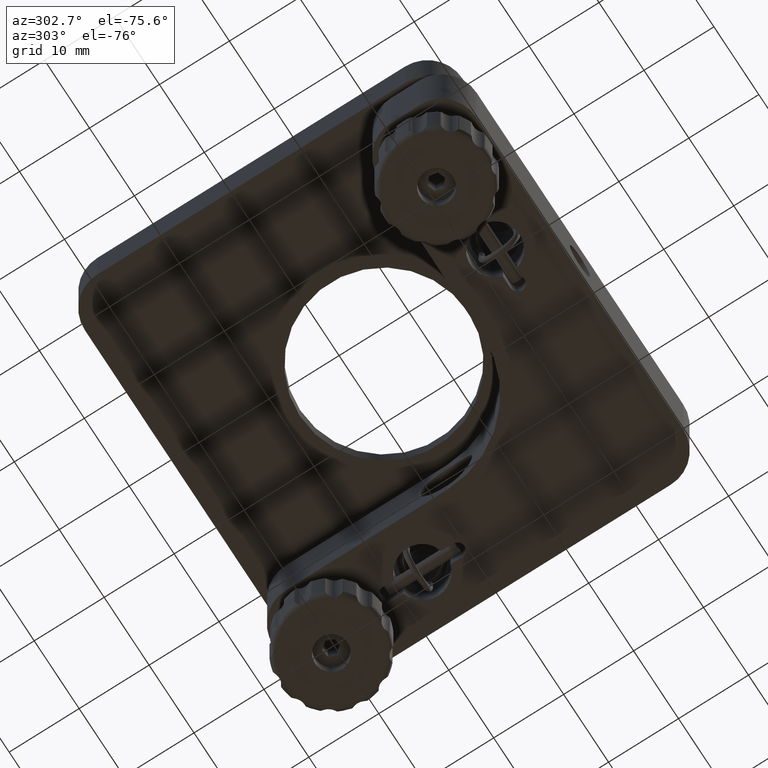
[diagram: clean part render]
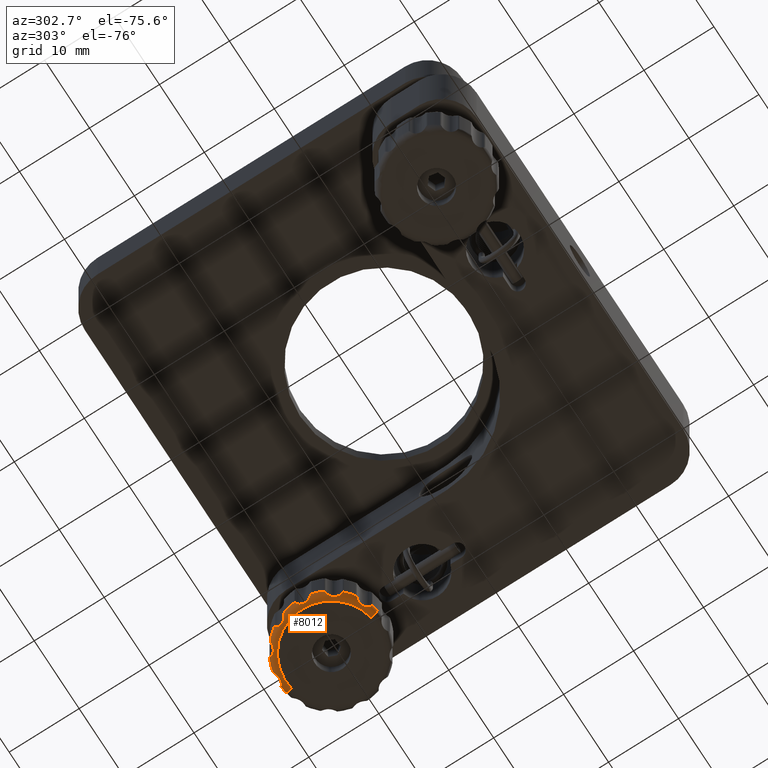
[diagram: same view with one face highlighted and labeled with its STEP entity id]
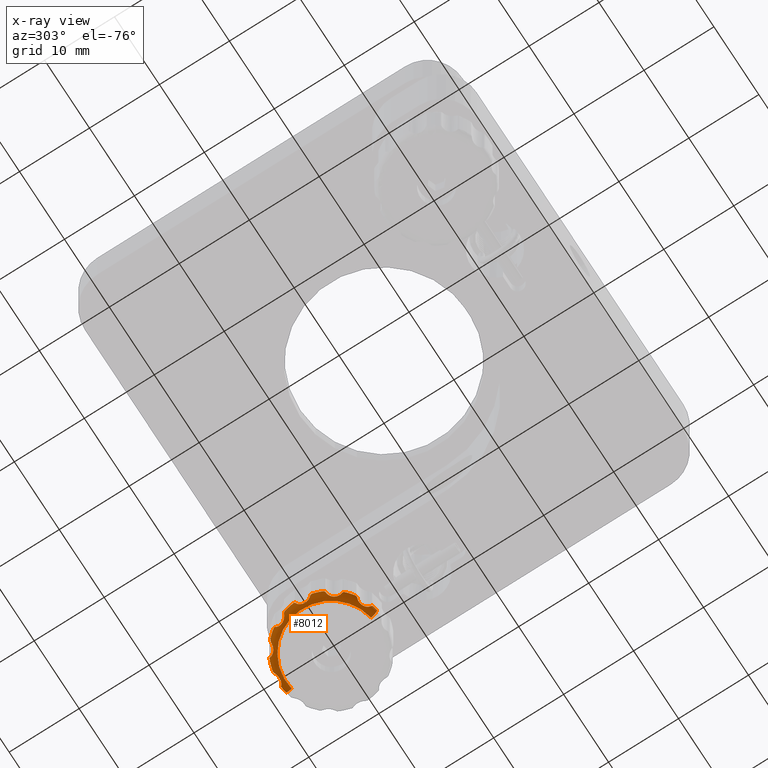
[diagram: x-ray of the same camera — body ghosted, the highlighted face saturated]
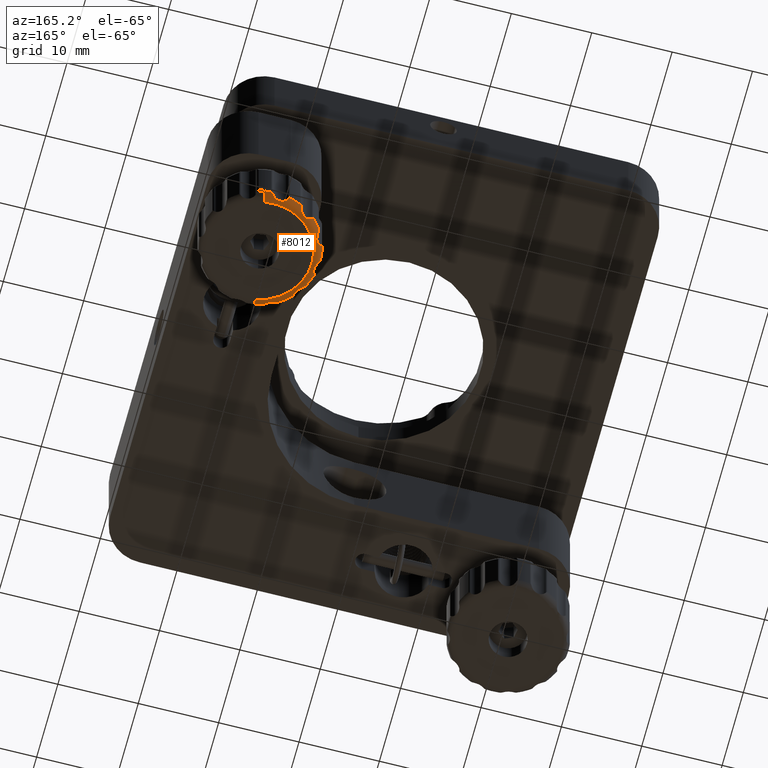
[diagram: same view with one face highlighted and labeled with its STEP entity id]
A machine part, auxiliary view. The second image highlights one B-rep face of the part: STEP entity #8012.
The next image is the same camera in x-ray: the body ghosted, the highlighted face saturated — about 0% of this face is hidden behind the body in this view.
A second angle (auxiliary view) of the same face is appended — the face is thin or edge-on in the first view.
In plain terms, the highlighted toroidal blend (fillet) surface has major radius 6.5 mm and minor (blend) radius 1 mm.
Its self-contained STEP definition (entity closure, byte-faithful):
#4 = CARTESIAN_POINT ( 'NONE',  ( 21.00000000000004300, 20.99999999999999300, -25.82470822868307500 ) ) ;
#27 = CARTESIAN_POINT ( 'NONE',  ( 14.45543812169540800, 23.62352019091589000, -26.66714343490419000 ) ) ;
#67 = TOROIDAL_SURFACE ( 'NONE', #15148, 6.500000000000000000, 1.000000000000000000 ) ;
#119 = CARTESIAN_POINT ( 'NONE',  ( 17.72897829913046100, 27.74910490601832800, -25.82470822868309000 ) ) ;
#168 = CARTESIAN_POINT ( 'NONE',  ( 14.18503406641042600, 23.38256357699137700, -26.52359823197068100 ) ) ;
#186 = CARTESIAN_POINT ( 'NONE',  ( 15.61527988249552100, 15.77938803815658100, -25.82470822868305800 ) ) ;
#198 = DIRECTION ( 'NONE',  ( -3.755894014714996800E-015, 3.179603490885369800E-016, 1.000000000000000000 ) ) ;
#216 = CARTESIAN_POINT ( 'NONE',  ( 21.54176456372600900, 28.48040715185282000, -25.82470822868307500 ) ) ;
#228 = VERTEX_POINT ( 'NONE', #1639 ) ;
#234 = CARTESIAN_POINT ( 'NONE',  ( 14.44004567988468500, 17.57090886900307300, -26.25615304385909400 ) ) ;
#311 = CARTESIAN_POINT ( 'NONE',  ( 15.15439969053274000, 17.14455961439440300, -26.69082189119487200 ) ) ;
#360 = AXIS2_PLACEMENT_3D ( 'NONE', #14291, #6502, #15640 ) ;
#382 = CARTESIAN_POINT ( 'NONE',  ( 17.55655947284740000, 27.50865493744284900, -26.33731476555139700 ) ) ;
#445 = DIRECTION ( 'NONE',  ( 3.755894014714996800E-015, -3.179603490885369800E-016, -1.000000000000000000 ) ) ;
#502 = VERTEX_POINT ( 'NONE', #9794 ) ;
#509 = B_SPLINE_CURVE_WITH_KNOTS ( 'NONE', 3,
 ( #14050, #987, #3636, #15491 ),
 .UNSPECIFIED., .F., .F.,
 ( 4, 4 ),
 ( 6.418687837528984100E-016, 0.0004984791478706522700 ),
 .UNSPECIFIED. ) ;
#574 = CARTESIAN_POINT ( 'NONE',  ( 21.00000000000004300, 20.99999999999999300, -25.82470822868307500 ) ) ;
#668 = EDGE_CURVE ( 'NONE', #6595, #16224, #509, .T. ) ;
#679 = CARTESIAN_POINT ( 'NONE',  ( 17.57090886900301300, 27.55995432011524600, -26.25615304385905100 ) ) ;
#680 = CARTESIAN_POINT ( 'NONE',  ( 18.79837543197200500, 13.86229062644217400, -26.11577484361036000 ) ) ;
#726 = B_SPLINE_CURVE_WITH_KNOTS ( 'NONE', 3,
 ( #10446, #910, #8940, #4935 ),
 .UNSPECIFIED., .F., .F.,
 ( 4, 4 ),
 ( -6.324575239408970400E-006, 0.0004951179910539902800 ),
 .UNSPECIFIED. ) ;
#755 = ORIENTED_EDGE ( 'NONE', *, *, #1996, .F. ) ;
#758 = ORIENTED_EDGE ( 'NONE', *, *, #9917, .F. ) ;
#906 = CARTESIAN_POINT ( 'NONE',  ( 16.79061454901663500, 14.79265965770770000, -25.82470822868309000 ) ) ;
#910 = CARTESIAN_POINT ( 'NONE',  ( 13.70650194539036600, 19.25027486630400000, -25.97060735151874400 ) ) ;
#974 = CARTESIAN_POINT ( 'NONE',  ( 13.68766992815574900, 21.22097726679198700, -26.40847051692303900 ) ) ;
#987 = CARTESIAN_POINT ( 'NONE',  ( 14.35131096886372000, 17.59572962619095200, -26.11576418252679600 ) ) ;
#1116 = VERTEX_POINT ( 'NONE', #15060 ) ;
#1140 = CARTESIAN_POINT ( 'NONE',  ( 20.77502829707428900, 28.04660499960478100, -26.66759793289198700 ) ) ;
#1169 = EDGE_CURVE ( 'NONE', #15492, #5103, #8614, .T. ) ;
#1224 = CARTESIAN_POINT ( 'NONE',  ( 18.75856809091612800, 13.94538096963364500, -26.25615304386106500 ) ) ;
#1226 = AXIS2_PLACEMENT_3D ( 'NONE', #4, #198, #1609 ) ;
#1251 = CARTESIAN_POINT ( 'NONE',  ( 17.57090886900301300, 27.55995432011524600, -26.25615304385905100 ) ) ;
#1449 = EDGE_CURVE ( 'NONE', #1116, #13054, #13480, .T. ) ;
#1564 = CIRCLE ( 'NONE', #13519, 1.000000000000000400 ) ;
#1609 = DIRECTION ( 'NONE',  ( -0.1738966701729160200, -0.9847639047521857800, -4.625929269271485900E-016 ) ) ;
#1639 = CARTESIAN_POINT ( 'NONE',  ( 16.01123666022347100, 26.46844648930281400, -26.25615304386107600 ) ) ;
#1644 = CARTESIAN_POINT ( 'NONE',  ( 15.53801221491983000, 16.13276742192527600, -26.40806248021128200 ) ) ;
#1939 = VERTEX_POINT ( 'NONE', #7716 ) ;
#1972 = CARTESIAN_POINT ( 'NONE',  ( 13.76980475113959900, 19.41382745893652400, -26.25615304386101600 ) ) ;
#1996 = EDGE_CURVE ( 'NONE', #10193, #13054, #6553, .T. ) ;
#2122 = CARTESIAN_POINT ( 'NONE',  ( 14.72747085936239100, 25.05579841592233200, -26.11576418252679200 ) ) ;
#2216 = B_SPLINE_CURVE_WITH_KNOTS ( 'NONE', 3,
 ( #186, #12233, #10891, #16322 ),
 .UNSPECIFIED., .F., .F.,
 ( 4, 4 ),
 ( -6.324575239414207600E-006, 0.0004951179910539937500 ),
 .UNSPECIFIED. ) ;
#2229 = ORIENTED_EDGE ( 'NONE', *, *, #2338, .F. ) ;
#2303 = CARTESIAN_POINT ( 'NONE',  ( 21.31029712872238900, 28.39563265438377800, -26.25615304385904000 ) ) ;
#2313 = EDGE_CURVE ( 'NONE', #8046, #3101, #15546, .T. ) ;
#2330 = CARTESIAN_POINT ( 'NONE',  ( 19.69577497370301000, 13.61427071435862900, -25.82470822868307900 ) ) ;
#2338 = EDGE_CURVE ( 'NONE', #1116, #2868, #16804, .T. ) ;
#2352 = CARTESIAN_POINT ( 'NONE',  ( 21.22097726679193400, 28.31233007184429300, -26.40847051692300000 ) ) ;
#2399 = CARTESIAN_POINT ( 'NONE',  ( 21.00000000000004300, 20.99999999999999300, -25.82470822868307500 ) ) ;
#2473 = CARTESIAN_POINT ( 'NONE',  ( 19.99975419352233500, 27.97951693870893000, -26.66714343490419400 ) ) ;
#2493 = CARTESIAN_POINT ( 'NONE',  ( 16.98980807712964500, 14.73915745705463800, -26.18749694676456500 ) ) ;
#2576 = CIRCLE ( 'NONE', #1226, 7.499999999999999100 ) ;
#2585 = CARTESIAN_POINT ( 'NONE',  ( 16.90682096601646500, 14.74552409997155600, -26.04780393901572600 ) ) ;
#2716 = CARTESIAN_POINT ( 'NONE',  ( 19.21158995607633500, 28.28377140837716300, -25.89925108447961600 ) ) ;
#2733 = CARTESIAN_POINT ( 'NONE',  ( 14.57406761881174400, 23.78336984530308500, -26.69064492828464500 ) ) ;
#2752 = EDGE_CURVE ( 'NONE', #16379, #15358, #16163, .T. ) ;
#2790 = CARTESIAN_POINT ( 'NONE',  ( 13.64161921613119300, 21.27222049578642100, -26.33731476555140800 ) ) ;
#2862 = CARTESIAN_POINT ( 'NONE',  ( 14.76356555834352200, 24.91494025671615700, -26.33731476555140800 ) ) ;
#2868 = VERTEX_POINT ( 'NONE', #14596 ) ;
#2878 = CARTESIAN_POINT ( 'NONE',  ( 13.60436734561619200, 21.31029712872240000, -26.25615304385909700 ) ) ;
#2897 = CARTESIAN_POINT ( 'NONE',  ( 17.14455961439435300, 26.84560030946720500, -26.69082189119487600 ) ) ;
#2934 = EDGE_CURVE ( 'NONE', #13276, #4491, #7436, .T. ) ;
#2935 = CARTESIAN_POINT ( 'NONE',  ( 15.53567138919087900, 16.06473354480736800, -26.33790387512061000 ) ) ;
#2993 = CARTESIAN_POINT ( 'NONE',  ( 17.19787079417207900, 14.78694225727812400, -26.45261387397216200 ) ) ;
#2999 = CARTESIAN_POINT ( 'NONE',  ( 15.51780717490085800, 16.37648135105512300, -26.56793115511110800 ) ) ;
#3023 = CARTESIAN_POINT ( 'NONE',  ( 13.72638960505024700, 19.17117747649489300, -25.82470822868303300 ) ) ;
#3054 = DIRECTION ( 'NONE',  ( -3.755894014714996800E-015, 3.179603490885369800E-016, 1.000000000000000000 ) ) ;
#3101 = VERTEX_POINT ( 'NONE', #216 ) ;
#3146 = CARTESIAN_POINT ( 'NONE',  ( 19.17117747649480100, 28.27361039494967400, -25.82470822868308200 ) ) ;
#3417 = CIRCLE ( 'NONE', #360, 7.500000000000000000 ) ;
#3508 = CARTESIAN_POINT ( 'NONE',  ( 19.33685340561725900, 28.27096914716321100, -26.11830494729049000 ) ) ;
#3620 = ORIENTED_EDGE ( 'NONE', *, *, #1169, .F. ) ;
#3636 = CARTESIAN_POINT ( 'NONE',  ( 14.28625583367290600, 17.65601842189474600, -25.96974511887759400 ) ) ;
#3822 = CARTESIAN_POINT ( 'NONE',  ( 14.44004567988468500, 17.57090886900307300, -26.25615304385909400 ) ) ;
#4100 = CARTESIAN_POINT ( 'NONE',  ( 19.25434324352978900, 28.28553938311199500, -25.97415453565511700 ) ) ;
#4131 = CARTESIAN_POINT ( 'NONE',  ( 16.90682096601646500, 14.74552409997155600, -26.04780393901572600 ) ) ;
#4205 = CARTESIAN_POINT ( 'NONE',  ( 16.37648135105505900, 26.48219282509908000, -26.56793115511111800 ) ) ;
#4224 = CARTESIAN_POINT ( 'NONE',  ( 14.75034280860703500, 24.96654152338677300, -26.25615304385909400 ) ) ;
#4237 = CARTESIAN_POINT ( 'NONE',  ( 13.53993121026848100, 21.37615989049871600, -26.11576418252679200 ) ) ;
#4264 = CARTESIAN_POINT ( 'NONE',  ( 17.57090886900301300, 27.55995432011524600, -26.25615304385905100 ) ) ;
#4275 = CARTESIAN_POINT ( 'NONE',  ( 13.90678458709018600, 19.65587761701136300, -26.52359823197067000 ) ) ;
#4373 = CARTESIAN_POINT ( 'NONE',  ( 17.66664602966605800, 14.77443635177605200, -26.65198746077559700 ) ) ;
#4378 = CARTESIAN_POINT ( 'NONE',  ( 15.45568392817309100, 16.64400325220707800, -26.66714343490421900 ) ) ;
#4388 = CARTESIAN_POINT ( 'NONE',  ( 16.82666423754155700, 26.62343518475417900, -26.69064492828466200 ) ) ;
#4442 = CIRCLE ( 'NONE', #8616, 1.000000000000000400 ) ;
#4491 = VERTEX_POINT ( 'NONE', #4131 ) ;
#4607 = EDGE_CURVE ( 'NONE', #1939, #2868, #11261, .T. ) ;
#4699 = CIRCLE ( 'NONE', #12659, 7.499999999999999100 ) ;
#4739 = CARTESIAN_POINT ( 'NONE',  ( 17.72897829913046100, 27.74910490601832800, -25.82470822868309000 ) ) ;
#4795 = EDGE_CURVE ( 'NONE', #502, #16204, #12835, .T. ) ;
#4882 = CARTESIAN_POINT ( 'NONE',  ( 21.00000000000002800, 21.00000000000000000, -26.82470822868307500 ) ) ;
#4910 = CARTESIAN_POINT ( 'NONE',  ( 19.29649937849918500, 28.27809515057519700, -26.04780393901547700 ) ) ;
#4935 = CARTESIAN_POINT ( 'NONE',  ( 13.76980475113959900, 19.41382745893652400, -26.25615304386101600 ) ) ;
#4937 = CARTESIAN_POINT ( 'NONE',  ( 18.86855738811788900, 13.80878283540719800, -25.97060735151981700 ) ) ;
#5008 = VERTEX_POINT ( 'NONE', #10512 ) ;
#5061 = ORIENTED_EDGE ( 'NONE', *, *, #11696, .T. ) ;
#5088 = AXIS2_PLACEMENT_3D ( 'NONE', #4882, #16723, #10057 ) ;
#5103 = VERTEX_POINT ( 'NONE', #12035 ) ;
#5146 = CARTESIAN_POINT ( 'NONE',  ( 13.94538096963356500, 23.24143190908383600, -26.25615304386101600 ) ) ;
#5151 = CARTESIAN_POINT ( 'NONE',  ( 21.54176456372600900, 28.48040715185282000, -25.82470822868307500 ) ) ;
#5234 = ORIENTED_EDGE ( 'NONE', *, *, #10554, .T. ) ;
#5340 = ORIENTED_EDGE ( 'NONE', *, *, #10912, .T. ) ;
#5384 = VERTEX_POINT ( 'NONE', #3146 ) ;
#5450 = CARTESIAN_POINT ( 'NONE',  ( 19.86967164387594700, 14.59903461911081200, -25.82470822868307900 ) ) ;
#5476 = EDGE_CURVE ( 'NONE', #14556, #16958, #9437, .T. ) ;
#5480 = CARTESIAN_POINT ( 'NONE',  ( 14.77782503032192500, 24.84753696262274800, -26.40847051692303500 ) ) ;
#5533 = CARTESIAN_POINT ( 'NONE',  ( 14.79618141715013400, 24.69160867447395400, -26.52395729810419700 ) ) ;
#5591 = ORIENTED_EDGE ( 'NONE', *, *, #2752, .F. ) ;
#5613 = EDGE_CURVE ( 'NONE', #10385, #15492, #4442, .T. ) ;
#5626 = CARTESIAN_POINT ( 'NONE',  ( 14.25089509398159600, 17.72897829913054200, -25.82470822868309700 ) ) ;
#5649 = CARTESIAN_POINT ( 'NONE',  ( 13.76980475113959900, 19.41382745893652400, -26.25615304386101600 ) ) ;
#5697 = CARTESIAN_POINT ( 'NONE',  ( 14.04329439223838300, 20.19750280356602100, -26.69064492828464100 ) ) ;
#5706 = B_SPLINE_CURVE_WITH_KNOTS ( 'NONE', 3,
 ( #10178, #2122, #7476, #16592 ),
 .UNSPECIFIED., .F., .F.,
 ( 4, 4 ),
 ( 6.426161305655816000E-016, 0.0004984791478706483700 ),
 .UNSPECIFIED. ) ;
#5727 = EDGE_CURVE ( 'NONE', #6595, #5008, #6358, .T. ) ;
#5759 = CARTESIAN_POINT ( 'NONE',  ( 13.94052242054689800, 19.73701180769219500, -26.56793115511108300 ) ) ;
#5929 = EDGE_CURVE ( 'NONE', #7228, #3101, #16170, .T. ) ;
#5966 = CARTESIAN_POINT ( 'NONE',  ( 21.31029712872238900, 28.39563265438377800, -26.25615304385904000 ) ) ;
#5971 = CARTESIAN_POINT ( 'NONE',  ( 18.94700156689376800, 13.78645735899043600, -25.82470822868304700 ) ) ;
#6059 = CARTESIAN_POINT ( 'NONE',  ( 17.66664602966605800, 14.77443635177605200, -26.65198746077559700 ) ) ;
#6073 = CARTESIAN_POINT ( 'NONE',  ( 18.75856809091612800, 13.94538096963364500, -26.25615304386106500 ) ) ;
#6075 = DIRECTION ( 'NONE',  ( -0.1738966701729377500, -0.9847639047521820100, -3.400215877566102500E-016 ) ) ;
#6152 = CARTESIAN_POINT ( 'NONE',  ( 18.15367253789394300, 14.60402524483572900, -26.69101383591920800 ) ) ;
#6165 = DIRECTION ( 'NONE',  ( -0.1738966701729229300, -0.9847639047521845600, -4.625929269271484900E-016 ) ) ;
#6237 = CARTESIAN_POINT ( 'NONE',  ( 21.00000000000004300, 20.99999999999999300, -25.82470822868307500 ) ) ;
#6253 = B_SPLINE_CURVE_WITH_KNOTS ( 'NONE', 3,
 ( #9599, #2716, #4100, #16559 ),
 .UNSPECIFIED., .F., .F.,
 ( 4, 4 ),
 ( -6.324575239420768700E-006, 0.0002498727217913078200 ),
 .UNSPECIFIED. ) ;
#6261 = VERTEX_POINT ( 'NONE', #5971 ) ;
#6342 = CARTESIAN_POINT ( 'NONE',  ( 19.41382745893646000, 28.23019524886034800, -26.25615304386103000 ) ) ;
#6358 = B_SPLINE_CURVE_WITH_KNOTS ( 'NONE', 3,
 ( #234, #14453, #15007, #7031, #12341, #13642, #311, #9673, #4378, #2999, #7098, #1644, #2935, #13718 ),
 .UNSPECIFIED., .F., .F.,
 ( 4, 2, 2, 2, 2, 2, 4 ),
 ( 0.0004549188434784840600, 0.0007454011220209284400, 0.001035883400563372900, 0.001616847957648257600, 0.002197812514733142300, 0.002488294793275585200, 0.002778777071818028200 ),
 .UNSPECIFIED. ) ;
#6389 = B_SPLINE_CURVE_WITH_KNOTS ( 'NONE', 3,
 ( #10951, #11023, #2993, #12292, #7097, #4373 ),
 .UNSPECIFIED., .F., .F.,
 ( 4, 2, 4 ),
 ( 0.0004549188434784742500, 0.0008384482362595274500, 0.001221977629040580700 ),
 .UNSPECIFIED. ) ;
#6393 = CARTESIAN_POINT ( 'NONE',  ( 21.46089908673678800, 28.48626379160146300, -25.96974511887734800 ) ) ;
#6403 = DIRECTION ( 'NONE',  ( -3.755894014714996800E-015, 3.179603490885369800E-016, 1.000000000000000000 ) ) ;
#6405 = ORIENTED_EDGE ( 'NONE', *, *, #5727, .F. ) ;
#6408 = CARTESIAN_POINT ( 'NONE',  ( 21.27222049578639200, 28.35838078386885300, -26.33731476555136900 ) ) ;
#6421 = ORIENTED_EDGE ( 'NONE', *, *, #15341, .T. ) ;
#6502 = DIRECTION ( 'NONE',  ( -3.755894014714996800E-015, 3.179603490885369800E-016, 1.000000000000000000 ) ) ;
#6553 = B_SPLINE_CURVE_WITH_KNOTS ( 'NONE', 3,
 ( #4224, #2862, #5480, #5533, #14863, #16018, #8105, #2733, #27, #6667, #168, #8031, #12145, #17367 ),
 .UNSPECIFIED., .F., .F.,
 ( 4, 2, 2, 2, 2, 2, 4 ),
 ( 0.0004549188434784899200, 0.0007454011220209280000, 0.001035883400563366100, 0.001616847957648242000, 0.002197812514733118100, 0.002488294793275557500, 0.002778777071817997400 ),
 .UNSPECIFIED. ) ;
#6586 = ORIENTED_EDGE ( 'NONE', *, *, #15319, .T. ) ;
#6595 = VERTEX_POINT ( 'NONE', #3822 ) ;
#6615 = ORIENTED_EDGE ( 'NONE', *, *, #5613, .F. ) ;
#6640 = ORIENTED_EDGE ( 'NONE', *, *, #16265, .F. ) ;
#6667 = CARTESIAN_POINT ( 'NONE',  ( 14.25481898259299000, 23.43595893050810000, -26.56793115511107600 ) ) ;
#6992 = CARTESIAN_POINT ( 'NONE',  ( 13.83616353392288700, 19.51584683380014300, -26.40806248021123500 ) ) ;
#7031 = CARTESIAN_POINT ( 'NONE',  ( 14.70106381564956200, 17.47313984401913000, -26.52395729810420400 ) ) ;
#7035 = VERTEX_POINT ( 'NONE', #1972 ) ;
#7049 = CARTESIAN_POINT ( 'NONE',  ( 17.53520689077853900, 27.44315223646998400, -26.40847051692303500 ) ) ;
#7087 = CARTESIAN_POINT ( 'NONE',  ( 13.51959284814714300, 21.54176456372606600, -25.82470822868310000 ) ) ;
#7097 = CARTESIAN_POINT ( 'NONE',  ( 17.54323145099678200, 14.79622978284904300, -26.62547455919512300 ) ) ;
#7098 = CARTESIAN_POINT ( 'NONE',  ( 15.52915644939911400, 16.28934816408168400, -26.52359823197071600 ) ) ;
#7104 = ORIENTED_EDGE ( 'NONE', *, *, #2313, .F. ) ;
#7113 = CARTESIAN_POINT ( 'NONE',  ( 17.47313984401907700, 27.29893618435039900, -26.52395729810421100 ) ) ;
#7228 = VERTEX_POINT ( 'NONE', #2303 ) ;
#7436 = B_SPLINE_CURVE_WITH_KNOTS ( 'NONE', 3,
 ( #15792, #2493, #11809, #17133 ),
 .UNSPECIFIED., .F., .F.,
 ( 4, 4 ),
 ( 6.473750018040663100E-016, 0.0002437774083432675700 ),
 .UNSPECIFIED. ) ;
#7461 = ORIENTED_EDGE ( 'NONE', *, *, #1449, .T. ) ;
#7476 = CARTESIAN_POINT ( 'NONE',  ( 14.74715492040917300, 25.14228221349478400, -25.96974511887670500 ) ) ;
#7487 = ORIENTED_EDGE ( 'NONE', *, *, #5476, .T. ) ;
#7639 = VERTEX_POINT ( 'NONE', #119 ) ;
#7716 = CARTESIAN_POINT ( 'NONE',  ( 13.60436734561619200, 21.31029712872240000, -26.25615304385909700 ) ) ;
#7733 = ORIENTED_EDGE ( 'NONE', *, *, #14241, .T. ) ;
#7739 = ORIENTED_EDGE ( 'NONE', *, *, #4607, .T. ) ;
#7747 = CARTESIAN_POINT ( 'NONE',  ( 19.41382745893646000, 28.23019524886034800, -26.25615304386103000 ) ) ;
#7787 = CARTESIAN_POINT ( 'NONE',  ( 15.77938803815646200, 26.38472011750437600, -25.82470822868309300 ) ) ;
#8012 = ADVANCED_FACE ( 'NONE', ( #15976 ), #67, .T. ) ;
#8031 = CARTESIAN_POINT ( 'NONE',  ( 14.05385904871992200, 23.29660388800228100, -26.40806248021124600 ) ) ;
#8046 = VERTEX_POINT ( 'NONE', #16714 ) ;
#8053 = B_SPLINE_CURVE_WITH_KNOTS ( 'NONE', 3,
 ( #2585, #9338, #8440, #15092 ),
 .UNSPECIFIED., .F., .F.,
 ( 4, 4 ),
 ( 0.0002437774083432675700, 0.0004984791478706475000 ),
 .UNSPECIFIED. ) ;
#8105 = CARTESIAN_POINT ( 'NONE',  ( 14.73829052855539100, 24.13471817556592600, -26.69082189119486200 ) ) ;
#8417 = B_SPLINE_CURVE_WITH_KNOTS ( 'NONE', 3,
 ( #4264, #382, #7049, #7113, #14967, #12251, #2897, #4388, #16462, #4205, #11042, #10909, #13599, #16401 ),
 .UNSPECIFIED., .F., .F.,
 ( 4, 2, 2, 2, 2, 2, 4 ),
 ( 0.0004549188434784563600, 0.0007454011220208922200, 0.001035883400563328000, 0.001616847957648213100, 0.002197812514733098100, 0.002488294793275544900, 0.002778777071817992200 ),
 .UNSPECIFIED. ) ;
#8440 = CARTESIAN_POINT ( 'NONE',  ( 16.82490146229888600, 14.76940866356676100, -25.89881593887707100 ) ) ;
#8462 = ORIENTED_EDGE ( 'NONE', *, *, #5929, .T. ) ;
#8614 = CIRCLE ( 'NONE', #5088, 6.500000000000000000 ) ;
#8616 = AXIS2_PLACEMENT_3D ( 'NONE', #5450, #13404, #14775 ) ;
#8661 = AXIS2_PLACEMENT_3D ( 'NONE', #15470, #16827, #6165 ) ;
#8679 = ORIENTED_EDGE ( 'NONE', *, *, #15370, .F. ) ;
#8930 = B_SPLINE_CURVE_WITH_KNOTS ( 'NONE', 3,
 ( #679, #16756, #10830, #4739 ),
 .UNSPECIFIED., .F., .F.,
 ( 4, 4 ),
 ( 6.624009281243663500E-016, 0.0004984791478706366600 ),
 .UNSPECIFIED. ) ;
#8940 = CARTESIAN_POINT ( 'NONE',  ( 13.71775007365457300, 19.33780811872930300, -26.11577484361031400 ) ) ;
#8986 = B_SPLINE_CURVE_WITH_KNOTS ( 'NONE', 3,
 ( #15385, #4937, #680, #6073 ),
 .UNSPECIFIED., .F., .F.,
 ( 4, 4 ),
 ( -6.324575239419300800E-006, 0.0004951179910540151100 ),
 .UNSPECIFIED. ) ;
#9041 = CARTESIAN_POINT ( 'NONE',  ( 19.51584683380007900, 28.16383646607710000, -26.40806248021126700 ) ) ;
#9115 = CARTESIAN_POINT ( 'NONE',  ( 16.01123666022347100, 26.46844648930281400, -26.25615304386107600 ) ) ;
#9338 = CARTESIAN_POINT ( 'NONE',  ( 16.86465856477687800, 14.75296943904662700, -25.97414358809102100 ) ) ;
#9437 = B_SPLINE_CURVE_WITH_KNOTS ( 'NONE', 3,
 ( #11445, #3508, #16933, #14032 ),
 .UNSPECIFIED., .F., .F.,
 ( 4, 4 ),
 ( 0.0002498727217913078200, 0.0004951179910539645800 ),
 .UNSPECIFIED. ) ;
#9545 = ORIENTED_EDGE ( 'NONE', *, *, #10605, .F. ) ;
#9567 = ORIENTED_EDGE ( 'NONE', *, *, #16578, .F. ) ;
#9599 = CARTESIAN_POINT ( 'NONE',  ( 19.17117747649480100, 28.27361039494967400, -25.82470822868308200 ) ) ;
#9673 = CARTESIAN_POINT ( 'NONE',  ( 15.37656481524577900, 16.82666423754161400, -26.69064492828465500 ) ) ;
#9695 = EDGE_CURVE ( 'NONE', #6261, #16204, #8986, .T. ) ;
#9702 = ORIENTED_EDGE ( 'NONE', *, *, #12772, .T. ) ;
#9794 = CARTESIAN_POINT ( 'NONE',  ( 17.66664602966605800, 14.77443635177605200, -26.65198746077559700 ) ) ;
#9869 = AXIS2_PLACEMENT_3D ( 'NONE', #14382, #6403, #15698 ) ;
#9906 = VERTEX_POINT ( 'NONE', #1251 ) ;
#9917 = EDGE_CURVE ( 'NONE', #1939, #7035, #17350, .T. ) ;
#9952 = ORIENTED_EDGE ( 'NONE', *, *, #16975, .F. ) ;
#10041 = CARTESIAN_POINT ( 'NONE',  ( 13.78645735899035300, 23.05299843310617500, -25.82470822868310000 ) ) ;
#10057 = DIRECTION ( 'NONE',  ( -0.1738966701729377500, -0.9847639047521819000, -5.337610695313252400E-016 ) ) ;
#10157 = CARTESIAN_POINT ( 'NONE',  ( 18.67979598317890200, 14.09708168788145800, -26.45485963434153800 ) ) ;
#10178 = CARTESIAN_POINT ( 'NONE',  ( 14.75034280860703500, 24.96654152338677300, -26.25615304385909400 ) ) ;
#10193 = VERTEX_POINT ( 'NONE', #14076 ) ;
#10209 = B_SPLINE_CURVE_WITH_KNOTS ( 'NONE', 3,
 ( #7787, #12949, #16939, #9115 ),
 .UNSPECIFIED., .F., .F.,
 ( 4, 4 ),
 ( -6.324575239426858100E-006, 0.0004951179910539993900 ),
 .UNSPECIFIED. ) ;
#10333 = CARTESIAN_POINT ( 'NONE',  ( 19.73701180769213400, 28.05947757945308800, -26.56793115511108600 ) ) ;
#10385 = VERTEX_POINT ( 'NONE', #2330 ) ;
#10446 = CARTESIAN_POINT ( 'NONE',  ( 13.72638960505024700, 19.17117747649489300, -25.82470822868303300 ) ) ;
#10491 = CARTESIAN_POINT ( 'NONE',  ( 20.19750280356596800, 27.95670560776162000, -26.69064492828463700 ) ) ;
#10512 = CARTESIAN_POINT ( 'NONE',  ( 15.53155351069706900, 16.01123666022356700, -26.25615304386104000 ) ) ;
#10554 = EDGE_CURVE ( 'NONE', #4491, #15358, #8053, .T. ) ;
#10605 = EDGE_CURVE ( 'NONE', #5384, #7639, #12384, .T. ) ;
#10830 = CARTESIAN_POINT ( 'NONE',  ( 17.65601842189190400, 27.71374416632567900, -25.96974511887586000 ) ) ;
#10867 = CARTESIAN_POINT ( 'NONE',  ( 13.80011938081682700, 19.45809818076256500, -26.33790387512056700 ) ) ;
#10891 = CARTESIAN_POINT ( 'NONE',  ( 15.52448250771284000, 15.91937464168265800, -26.11577484361033900 ) ) ;
#10909 = CARTESIAN_POINT ( 'NONE',  ( 16.13276742192521200, 26.46198778508010800, -26.40806248021129900 ) ) ;
#10912 = EDGE_CURVE ( 'NONE', #17309, #7035, #726, .T. ) ;
#10951 = CARTESIAN_POINT ( 'NONE',  ( 17.03345847661313100, 14.75034280860713300, -26.25615304385908600 ) ) ;
#10982 = VERTEX_POINT ( 'NONE', #17063 ) ;
#11023 = CARTESIAN_POINT ( 'NONE',  ( 17.10158863096264500, 14.76780106183610800, -26.36331244096214400 ) ) ;
#11042 = CARTESIAN_POINT ( 'NONE',  ( 16.28934816408163400, 26.47084355060081900, -26.52359823197073000 ) ) ;
#11110 = CARTESIAN_POINT ( 'NONE',  ( 21.00000000000004300, 20.99999999999999300, -25.82470822868307500 ) ) ;
#11193 = ORIENTED_EDGE ( 'NONE', *, *, #15511, .F. ) ;
#11261 = B_SPLINE_CURVE_WITH_KNOTS ( 'NONE', 3,
 ( #2878, #4237, #16266, #7087 ),
 .UNSPECIFIED., .F., .F.,
 ( 4, 4 ),
 ( 6.507964880783069100E-016, 0.0004984791478706677700 ),
 .UNSPECIFIED. ) ;
#11384 = CARTESIAN_POINT ( 'NONE',  ( 18.72750757174949100, 14.01021396598080100, -26.36568610142837700 ) ) ;
#11445 = CARTESIAN_POINT ( 'NONE',  ( 19.29649937849918500, 28.27809515057519700, -26.04780393901547700 ) ) ;
#11492 = CARTESIAN_POINT ( 'NONE',  ( 18.54582546216446900, 14.27865352078348600, -26.58602876302379400 ) ) ;
#11541 = CARTESIAN_POINT ( 'NONE',  ( 17.79188528832480600, 14.75232070562920900, -26.67889235462713800 ) ) ;
#11542 = EDGE_LOOP ( 'NONE', ( #7104, #9702, #3620, #6615, #11193, #12398, #13943, #6640, #14179, #5234, #5591, #15243, #6405, #13906, #14136, #5340, #758, #7739, #2229, #7461, #755, #5061, #8679, #6421, #9567, #6586, #9545, #7733, #7487, #9952, #8462 ) ) ;
#11677 = CARTESIAN_POINT ( 'NONE',  ( 21.31029712872238900, 28.39563265438377800, -26.25615304385904000 ) ) ;
#11680 = CARTESIAN_POINT ( 'NONE',  ( 13.78153116954506700, 21.09511760150062200, -26.52395729810420400 ) ) ;
#11696 = EDGE_CURVE ( 'NONE', #10193, #13742, #5706, .T. ) ;
#11809 = CARTESIAN_POINT ( 'NONE',  ( 16.94717499313461000, 14.73839809656233300, -26.11830494728997800 ) ) ;
#11902 = DIRECTION ( 'NONE',  ( -0.1738966701729376700, -0.9847639047521821200, 0.0000000000000000000 ) ) ;
#12035 = CARTESIAN_POINT ( 'NONE',  ( 22.13032835612414200, 27.40096538088917900, -26.82470822868306800 ) ) ;
#12145 = CARTESIAN_POINT ( 'NONE',  ( 13.99376956995339300, 23.26461416399043400, -26.33790387512058100 ) ) ;
#12162 = CARTESIAN_POINT ( 'NONE',  ( 15.61527988249552100, 15.77938803815658100, -25.82470822868305800 ) ) ;
#12233 = CARTESIAN_POINT ( 'NONE',  ( 15.55850796910239700, 15.83794455727569800, -25.97060735151773500 ) ) ;
#12251 = CARTESIAN_POINT ( 'NONE',  ( 17.28186629033133000, 26.99005308862928100, -26.66759793289200800 ) ) ;
#12292 = CARTESIAN_POINT ( 'NONE',  ( 17.41919085976252600, 14.80132442606762300, -26.58312147874185500 ) ) ;
#12341 = CARTESIAN_POINT ( 'NONE',  ( 14.77896945361350400, 17.43265650167655800, -26.56820869020726400 ) ) ;
#12384 = CIRCLE ( 'NONE', #16055, 7.499999999999999100 ) ;
#12398 = ORIENTED_EDGE ( 'NONE', *, *, #9695, .T. ) ;
#12659 = AXIS2_PLACEMENT_3D ( 'NONE', #6237, #14214, #12896 ) ;
#12718 = CARTESIAN_POINT ( 'NONE',  ( 13.86229062644212600, 23.20162456802796000, -26.11577484361032800 ) ) ;
#12772 = EDGE_CURVE ( 'NONE', #8046, #5103, #1564, .T. ) ;
#12835 = B_SPLINE_CURVE_WITH_KNOTS ( 'NONE', 3,
 ( #6059, #11541, #12880, #6152, #14080, #15302, #11492, #10157, #11384, #13974 ),
 .UNSPECIFIED., .F., .F.,
 ( 4, 2, 2, 2, 4 ),
 ( 0.001221977629040580700, 0.001611177489734912900, 0.002000377350429244900, 0.002389577211123577300, 0.002778777071817909300 ),
 .UNSPECIFIED. ) ;
#12880 = CARTESIAN_POINT ( 'NONE',  ( 17.91794377645721800, 14.71312145544663600, -26.69044309955801700 ) ) ;
#12896 = DIRECTION ( 'NONE',  ( -0.1738966701729447200, -0.9847639047521806700, -4.625929269271485900E-016 ) ) ;
#12948 = CARTESIAN_POINT ( 'NONE',  ( 19.45809818076248700, 28.19988061918314100, -26.33790387512058800 ) ) ;
#12949 = CARTESIAN_POINT ( 'NONE',  ( 15.83794455727547600, 26.44149203089741800, -25.97060735151784900 ) ) ;
#13008 = CARTESIAN_POINT ( 'NONE',  ( 13.82875775994858900, 21.02110517961988000, -26.56820869020726100 ) ) ;
#13033 = CARTESIAN_POINT ( 'NONE',  ( 17.03345847661313100, 14.75034280860713300, -26.25615304385908600 ) ) ;
#13054 = VERTEX_POINT ( 'NONE', #5146 ) ;
#13182 = CARTESIAN_POINT ( 'NONE',  ( 20.58389083802264700, 27.99015856117164700, -26.69082189119484000 ) ) ;
#13253 = CARTESIAN_POINT ( 'NONE',  ( 22.13032835612413900, 27.40096538088917600, -25.82470822868307200 ) ) ;
#13276 = VERTEX_POINT ( 'NONE', #13033 ) ;
#13404 = DIRECTION ( 'NONE',  ( 0.9847639047521821200, -0.1738966701729377500, 3.753961101719610800E-015 ) ) ;
#13480 = B_SPLINE_CURVE_WITH_KNOTS ( 'NONE', 3,
 ( #10041, #14215, #12718, #14159 ),
 .UNSPECIFIED., .F., .F.,
 ( 4, 4 ),
 ( -6.324575239419674400E-006, 0.0004951179910539446400 ),
 .UNSPECIFIED. ) ;
#13519 = AXIS2_PLACEMENT_3D ( 'NONE', #13253, #14393, #11902 ) ;
#13599 = CARTESIAN_POINT ( 'NONE',  ( 16.06473354480730000, 26.46432861080905900, -26.33790387512063400 ) ) ;
#13642 = CARTESIAN_POINT ( 'NONE',  ( 15.00994691137068000, 17.28186629033138300, -26.66759793289200800 ) ) ;
#13718 = CARTESIAN_POINT ( 'NONE',  ( 15.53155351069706900, 16.01123666022356700, -26.25615304386104000 ) ) ;
#13742 = VERTEX_POINT ( 'NONE', #13930 ) ;
#13750 = CARTESIAN_POINT ( 'NONE',  ( 14.00984143882837100, 20.58389083802269000, -26.69082189119486500 ) ) ;
#13906 = ORIENTED_EDGE ( 'NONE', *, *, #668, .T. ) ;
#13930 = CARTESIAN_POINT ( 'NONE',  ( 14.79265965770761000, 25.20938545098328700, -25.82470822868309700 ) ) ;
#13943 = ORIENTED_EDGE ( 'NONE', *, *, #4795, .F. ) ;
#13974 = CARTESIAN_POINT ( 'NONE',  ( 18.75856809091612800, 13.94538096963364500, -26.25615304386106500 ) ) ;
#14032 = CARTESIAN_POINT ( 'NONE',  ( 19.41382745893646000, 28.23019524886034800, -26.25615304386103000 ) ) ;
#14050 = CARTESIAN_POINT ( 'NONE',  ( 14.44004567988468500, 17.57090886900307300, -26.25615304385909400 ) ) ;
#14076 = CARTESIAN_POINT ( 'NONE',  ( 14.75034280860703500, 24.96654152338677300, -26.25615304385909400 ) ) ;
#14080 = CARTESIAN_POINT ( 'NONE',  ( 18.26493735138139500, 14.53339126837438900, -26.68002202287061300 ) ) ;
#14136 = ORIENTED_EDGE ( 'NONE', *, *, #16060, .F. ) ;
#14159 = CARTESIAN_POINT ( 'NONE',  ( 13.94538096963356500, 23.24143190908383600, -26.25615304386101600 ) ) ;
#14179 = ORIENTED_EDGE ( 'NONE', *, *, #2934, .T. ) ;
#14214 = DIRECTION ( 'NONE',  ( -3.755894014714996800E-015, 3.179603490885369800E-016, 1.000000000000000000 ) ) ;
#14215 = CARTESIAN_POINT ( 'NONE',  ( 13.80878283540782500, 23.13144261188457700, -25.97060735151837100 ) ) ;
#14241 = EDGE_CURVE ( 'NONE', #5384, #14556, #6253, .T. ) ;
#14291 = CARTESIAN_POINT ( 'NONE',  ( 21.00000000000004300, 20.99999999999999300, -25.82470822868307500 ) ) ;
#14294 = DIRECTION ( 'NONE',  ( -3.755894014714996800E-015, 3.179603490885369800E-016, 1.000000000000000000 ) ) ;
#14382 = CARTESIAN_POINT ( 'NONE',  ( 21.00000000000004300, 20.99999999999999300, -25.82470822868307500 ) ) ;
#14393 = DIRECTION ( 'NONE',  ( -0.9847639047521821200, 0.1738966701729376400, -3.753961101719610800E-015 ) ) ;
#14453 = CARTESIAN_POINT ( 'NONE',  ( 14.49134506255713900, 17.55655947284744700, -26.33731476555140800 ) ) ;
#14549 = CARTESIAN_POINT ( 'NONE',  ( 21.02110517961983400, 28.17124224005144500, -26.56820869020723600 ) ) ;
#14556 = VERTEX_POINT ( 'NONE', #4910 ) ;
#14596 = CARTESIAN_POINT ( 'NONE',  ( 13.51959284814714300, 21.54176456372606600, -25.82470822868310000 ) ) ;
#14775 = DIRECTION ( 'NONE',  ( 0.1738966701729376700, 0.9847639047521821200, 0.0000000000000000000 ) ) ;
#14855 = CARTESIAN_POINT ( 'NONE',  ( 14.02048306129106300, 19.99975419352236700, -26.66714343490419000 ) ) ;
#14863 = CARTESIAN_POINT ( 'NONE',  ( 14.80007463323334200, 24.60389874172786800, -26.56820869020726100 ) ) ;
#14943 = EDGE_CURVE ( 'NONE', #16379, #5008, #2216, .T. ) ;
#14967 = CARTESIAN_POINT ( 'NONE',  ( 17.43265650167651200, 27.22103054638645500, -26.56820869020726400 ) ) ;
#15007 = CARTESIAN_POINT ( 'NONE',  ( 14.55684776352998700, 17.53520689077858900, -26.40847051692303900 ) ) ;
#15060 = CARTESIAN_POINT ( 'NONE',  ( 13.78645735899035300, 23.05299843310617500, -25.82470822868310000 ) ) ;
#15092 = CARTESIAN_POINT ( 'NONE',  ( 16.79061454901663500, 14.79265965770770000, -25.82470822868309000 ) ) ;
#15148 = AXIS2_PLACEMENT_3D ( 'NONE', #574, #445, #6075 ) ;
#15243 = ORIENTED_EDGE ( 'NONE', *, *, #14943, .T. ) ;
#15286 = CARTESIAN_POINT ( 'NONE',  ( 21.37615989049870900, 28.46006878973146900, -26.11576418252675300 ) ) ;
#15302 = CARTESIAN_POINT ( 'NONE',  ( 18.46014619330258800, 14.37172830855836600, -26.62814234013896500 ) ) ;
#15319 = EDGE_CURVE ( 'NONE', #9906, #7639, #8930, .T. ) ;
#15341 = EDGE_CURVE ( 'NONE', #10982, #228, #10209, .T. ) ;
#15358 = VERTEX_POINT ( 'NONE', #906 ) ;
#15370 = EDGE_CURVE ( 'NONE', #10982, #13742, #4699, .T. ) ;
#15385 = CARTESIAN_POINT ( 'NONE',  ( 18.94700156689376800, 13.78645735899043600, -25.82470822868304700 ) ) ;
#15470 = CARTESIAN_POINT ( 'NONE',  ( 21.00000000000004300, 20.99999999999999300, -25.82470822868307500 ) ) ;
#15491 = CARTESIAN_POINT ( 'NONE',  ( 14.25089509398159600, 17.72897829913054200, -25.82470822868309700 ) ) ;
#15492 = VERTEX_POINT ( 'NONE', #15995 ) ;
#15511 = EDGE_CURVE ( 'NONE', #6261, #10385, #2576, .T. ) ;
#15546 = CIRCLE ( 'NONE', #9869, 7.500000000000000000 ) ;
#15640 = DIRECTION ( 'NONE',  ( -0.1738966701729280400, -0.9847639047521836700, -4.625929269271485900E-016 ) ) ;
#15698 = DIRECTION ( 'NONE',  ( -0.1738966701729516000, -0.9847639047521795600, -4.625929269271485900E-016 ) ) ;
#15700 = CARTESIAN_POINT ( 'NONE',  ( 19.65587761701130600, 28.09321541290980300, -26.52359823197069100 ) ) ;
#15792 = CARTESIAN_POINT ( 'NONE',  ( 17.03345847661313100, 14.75034280860713300, -26.25615304385908600 ) ) ;
#15976 = FACE_OUTER_BOUND ( 'NONE', #11542, .T. ) ;
#15995 = CARTESIAN_POINT ( 'NONE',  ( 19.86967164387595000, 14.59903461911081400, -26.82470822868307500 ) ) ;
#16018 = CARTESIAN_POINT ( 'NONE',  ( 14.78497520844497400, 24.32847128993601900, -26.66759793289200400 ) ) ;
#16055 = AXIS2_PLACEMENT_3D ( 'NONE', #11110, #3054, #16308 ) ;
#16060 = EDGE_CURVE ( 'NONE', #17309, #16224, #3417, .T. ) ;
#16112 = CARTESIAN_POINT ( 'NONE',  ( 13.60436734561619200, 21.31029712872240000, -26.25615304385909700 ) ) ;
#16163 = CIRCLE ( 'NONE', #16280, 7.500000000000000900 ) ;
#16170 = B_SPLINE_CURVE_WITH_KNOTS ( 'NONE', 3,
 ( #5966, #15286, #6393, #5151 ),
 .UNSPECIFIED., .F., .F.,
 ( 4, 4 ),
 ( 6.507964880783070100E-016, 0.0004984791478706135600 ),
 .UNSPECIFIED. ) ;
#16204 = VERTEX_POINT ( 'NONE', #1224 ) ;
#16224 = VERTEX_POINT ( 'NONE', #5626 ) ;
#16265 = EDGE_CURVE ( 'NONE', #13276, #502, #6389, .T. ) ;
#16266 = CARTESIAN_POINT ( 'NONE',  ( 13.51373620839845400, 21.46089908673624100, -25.96974511887705700 ) ) ;
#16280 = AXIS2_PLACEMENT_3D ( 'NONE', #2399, #14294, #17036 ) ;
#16308 = DIRECTION ( 'NONE',  ( -0.1738966701729438000, -0.9847639047521810100, -4.625929269271485900E-016 ) ) ;
#16322 = CARTESIAN_POINT ( 'NONE',  ( 15.53155351069706900, 16.01123666022356700, -26.25615304386104000 ) ) ;
#16379 = VERTEX_POINT ( 'NONE', #12162 ) ;
#16401 = CARTESIAN_POINT ( 'NONE',  ( 16.01123666022347100, 26.46844648930281400, -26.25615304386107600 ) ) ;
#16413 = CARTESIAN_POINT ( 'NONE',  ( 13.95339500039524700, 20.77502829707433900, -26.66759793289199400 ) ) ;
#16462 = CARTESIAN_POINT ( 'NONE',  ( 16.64400325220701400, 26.54431607182684500, -26.66714343490421900 ) ) ;
#16559 = CARTESIAN_POINT ( 'NONE',  ( 19.29649937849918500, 28.27809515057519700, -26.04780393901547700 ) ) ;
#16578 = EDGE_CURVE ( 'NONE', #9906, #228, #8417, .T. ) ;
#16592 = CARTESIAN_POINT ( 'NONE',  ( 14.79265965770761000, 25.20938545098328700, -25.82470822868309700 ) ) ;
#16647 = B_SPLINE_CURVE_WITH_KNOTS ( 'NONE', 3,
 ( #11677, #6408, #2352, #17058, #14549, #1140, #13182, #10491, #2473, #10333, #15700, #9041, #12948, #7747 ),
 .UNSPECIFIED., .F., .F.,
 ( 4, 2, 2, 2, 2, 2, 4 ),
 ( 0.0004549188434784551200, 0.0007454011220209076200, 0.001035883400563360300, 0.001616847957648274100, 0.002197812514733187900, 0.002488294793275641200, 0.002778777071818094900 ),
 .UNSPECIFIED. ) ;
#16714 = CARTESIAN_POINT ( 'NONE',  ( 22.30422502629707500, 28.38572928564136100, -25.82470822868307500 ) ) ;
#16723 = DIRECTION ( 'NONE',  ( 3.755894014714996800E-015, -3.179603490885369800E-016, -1.000000000000000000 ) ) ;
#16756 = CARTESIAN_POINT ( 'NONE',  ( 17.59572962619082400, 27.64868903113618300, -26.11576418252675700 ) ) ;
#16804 = CIRCLE ( 'NONE', #8661, 7.500000000000000900 ) ;
#16827 = DIRECTION ( 'NONE',  ( -3.755894014714996800E-015, 3.179603490885369800E-016, 1.000000000000000000 ) ) ;
#16933 = CARTESIAN_POINT ( 'NONE',  ( 19.37664795960496600, 28.25565412342411900, -26.18749694676586200 ) ) ;
#16939 = CARTESIAN_POINT ( 'NONE',  ( 15.91937464168255700, 26.47551749228704700, -26.11577484361037800 ) ) ;
#16958 = VERTEX_POINT ( 'NONE', #6342 ) ;
#16975 = EDGE_CURVE ( 'NONE', #7228, #16958, #16647, .T. ) ;
#17036 = DIRECTION ( 'NONE',  ( -0.1738966701729298700, -0.9847639047521833400, -4.625929269271484900E-016 ) ) ;
#17058 = CARTESIAN_POINT ( 'NONE',  ( 21.09511760150056900, 28.21846883045496700, -26.52395729810417500 ) ) ;
#17063 = CARTESIAN_POINT ( 'NONE',  ( 15.77938803815646200, 26.38472011750437600, -25.82470822868309300 ) ) ;
#17133 = CARTESIAN_POINT ( 'NONE',  ( 16.90682096601646500, 14.74552409997155600, -26.04780393901572600 ) ) ;
#17309 = VERTEX_POINT ( 'NONE', #3023 ) ;
#17350 = B_SPLINE_CURVE_WITH_KNOTS ( 'NONE', 3,
 ( #16112, #2790, #974, #11680, #13008, #16413, #13750, #5697, #14855, #5759, #4275, #6992, #10867, #5649 ),
 .UNSPECIFIED., .F., .F.,
 ( 4, 2, 2, 2, 2, 2, 4 ),
 ( 0.0004549188434784906200, 0.0007454011220209436200, 0.001035883400563396500, 0.001616847957648299500, 0.002197812514733202600, 0.002488294793275658100, 0.002778777071818113600 ),
 .UNSPECIFIED. ) ;
#17367 = CARTESIAN_POINT ( 'NONE',  ( 13.94538096963356500, 23.24143190908383600, -26.25615304386101600 ) ) ;